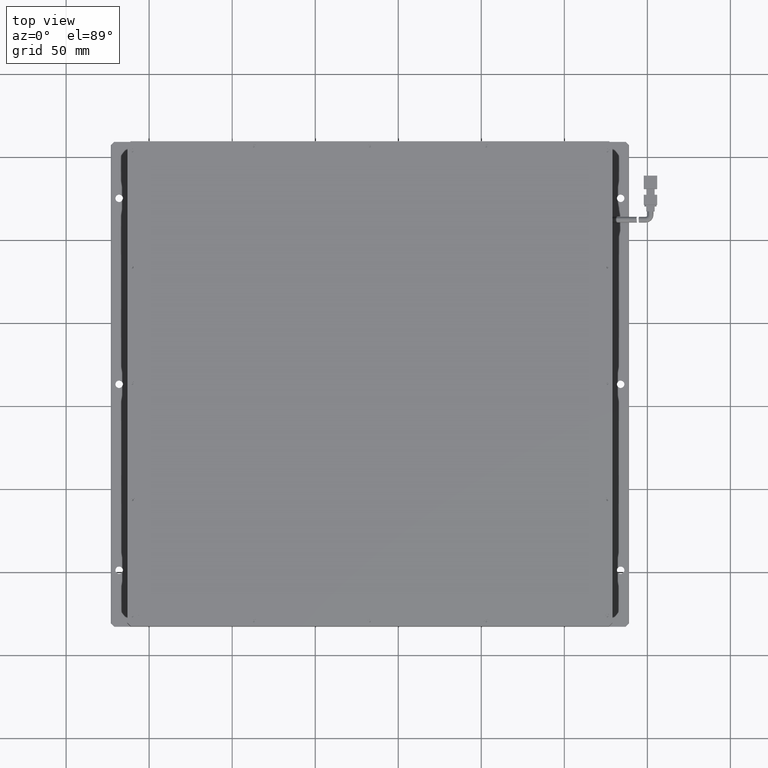
[diagram: clean part render]
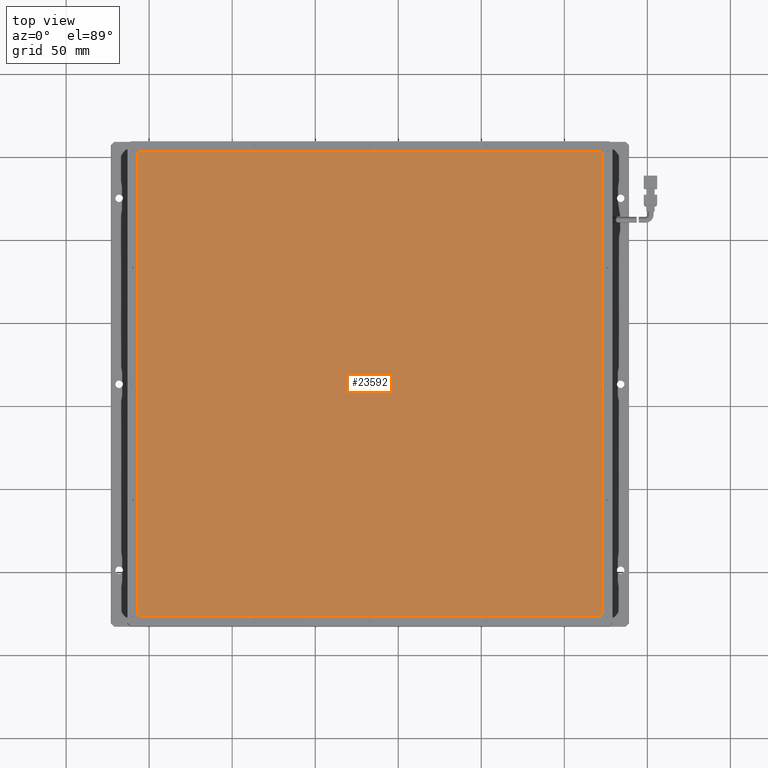
[diagram: same view with one face highlighted and labeled with its STEP entity id]
A machine part, top view. The second image highlights one B-rep face of the part: STEP entity #23592.
In plain terms, the highlighted planar face has unit normal (0, 0, 1).
Its self-contained STEP definition (entity closure, byte-faithful):
#377 = FACE_OUTER_BOUND ( 'NONE', #15428, .T. ) ;
#986 = VECTOR ( 'NONE', #14468, 1000.000000000000000 ) ;
#1299 = VERTEX_POINT ( 'NONE', #9864 ) ;
#2096 = EDGE_CURVE ( 'NONE', #17596, #12570, #12340, .T. ) ;
#2217 = CARTESIAN_POINT ( 'NONE',  ( 172.9193228736581300, 151.2698045692266100, 10.59999999997180500 ) ) ;
#2744 = EDGE_CURVE ( 'NONE', #26042, #10917, #13366, .T. ) ;
#3100 = VECTOR ( 'NONE', #5318, 1000.000000000000000 ) ;
#3785 = DIRECTION ( 'NONE',  ( 0.0000000000000000000, 0.0000000000000000000, 1.000000000000000000 ) ) ;
#4759 = DIRECTION ( 'NONE',  ( 0.0000000000000000000, 0.0000000000000000000, 1.000000000000000000 ) ) ;
#4936 = PLANE ( 'NONE',  #17155 ) ;
#5318 = DIRECTION ( 'NONE',  ( -1.000000000000000000, -0.0000000000000000000, -0.0000000000000000000 ) ) ;
#6675 = VERTEX_POINT ( 'NONE', #23958 ) ;
#7338 = EDGE_CURVE ( 'NONE', #10578, #17596, #11869, .T. ) ;
#7596 = VECTOR ( 'NONE', #15846, 1000.000000000000000 ) ;
#8400 = EDGE_CURVE ( 'NONE', #10917, #1299, #12492, .T. ) ;
#9300 = CARTESIAN_POINT ( 'NONE',  ( 170.9193228736581300, -124.7301954307734100, 10.59999999997180500 ) ) ;
#9442 = ORIENTED_EDGE ( 'NONE', *, *, #7338, .T. ) ;
#9864 = CARTESIAN_POINT ( 'NONE',  ( -105.0806771263419000, -126.7301954307734100, 10.59999999997180500 ) ) ;
#9947 = EDGE_CURVE ( 'NONE', #13915, #26042, #11231, .T. ) ;
#9994 = CARTESIAN_POINT ( 'NONE',  ( 170.9193228736581300, -126.7301954307734100, 10.59999999997180500 ) ) ;
#10578 = VERTEX_POINT ( 'NONE', #12555 ) ;
#10721 = ORIENTED_EDGE ( 'NONE', *, *, #8400, .T. ) ;
#10860 = CIRCLE ( 'NONE', #13678, 2.000000000000001800 ) ;
#10917 = VERTEX_POINT ( 'NONE', #18456 ) ;
#11231 = CIRCLE ( 'NONE', #11742, 2.000000000000001800 ) ;
#11475 = DIRECTION ( 'NONE',  ( 1.000000000000000000, 0.0000000000000000000, -0.0000000000000000000 ) ) ;
#11634 = CARTESIAN_POINT ( 'NONE',  ( -107.0806771263419000, 151.2698045692266100, 10.59999999997180500 ) ) ;
#11742 = AXIS2_PLACEMENT_3D ( 'NONE', #16623, #3785, #18813 ) ;
#11869 = CIRCLE ( 'NONE', #14588, 2.000000000000001800 ) ;
#11927 = CARTESIAN_POINT ( 'NONE',  ( 170.9193228736581300, -124.7301954307734100, 10.59999999997180500 ) ) ;
#12340 = LINE ( 'NONE', #2217, #986 ) ;
#12492 = CIRCLE ( 'NONE', #18566, 2.000000000000001800 ) ;
#12555 = CARTESIAN_POINT ( 'NONE',  ( 170.9193228736581300, -126.7301954307734100, 10.59999999997180500 ) ) ;
#12570 = VERTEX_POINT ( 'NONE', #12950 ) ;
#12794 = DIRECTION ( 'NONE',  ( 0.0000000000000000000, 0.0000000000000000000, 1.000000000000000000 ) ) ;
#12843 = EDGE_CURVE ( 'NONE', #6675, #13915, #14492, .T. ) ;
#12950 = CARTESIAN_POINT ( 'NONE',  ( 172.9193228736581300, 151.2698045692266100, 10.59999999997180500 ) ) ;
#13366 = LINE ( 'NONE', #16427, #7596 ) ;
#13678 = AXIS2_PLACEMENT_3D ( 'NONE', #25599, #12794, #27797 ) ;
#13915 = VERTEX_POINT ( 'NONE', #24893 ) ;
#14138 = DIRECTION ( 'NONE',  ( 1.000000000000000000, 0.0000000000000000000, 0.0000000000000000000 ) ) ;
#14468 = DIRECTION ( 'NONE',  ( -0.0000000000000000000, 1.000000000000000000, -0.0000000000000000000 ) ) ;
#14492 = LINE ( 'NONE', #18177, #3100 ) ;
#14588 = AXIS2_PLACEMENT_3D ( 'NONE', #11927, #26945, #14138 ) ;
#15339 = ORIENTED_EDGE ( 'NONE', *, *, #24622, .T. ) ;
#15428 = EDGE_LOOP ( 'NONE', ( #9442, #23002, #20628, #16089, #21291, #25128, #10721, #15339 ) ) ;
#15846 = DIRECTION ( 'NONE',  ( -0.0000000000000000000, -1.000000000000000000, -0.0000000000000000000 ) ) ;
#16089 = ORIENTED_EDGE ( 'NONE', *, *, #12843, .T. ) ;
#16300 = CARTESIAN_POINT ( 'NONE',  ( 172.9193228736581300, -124.7301954307734100, 10.59999999997180500 ) ) ;
#16427 = CARTESIAN_POINT ( 'NONE',  ( -107.0806771263419000, -124.7301954307734100, 10.59999999997180500 ) ) ;
#16429 = LINE ( 'NONE', #9994, #22107 ) ;
#16623 = CARTESIAN_POINT ( 'NONE',  ( -105.0806771263419000, 151.2698045692266100, 10.59999999997180500 ) ) ;
#17155 = AXIS2_PLACEMENT_3D ( 'NONE', #9300, #24347, #11475 ) ;
#17593 = CARTESIAN_POINT ( 'NONE',  ( -105.0806771263419000, -124.7301954307734100, 10.59999999997180500 ) ) ;
#17596 = VERTEX_POINT ( 'NONE', #16300 ) ;
#18177 = CARTESIAN_POINT ( 'NONE',  ( -105.0806771263419000, 153.2698045692266100, 10.59999999997180500 ) ) ;
#18456 = CARTESIAN_POINT ( 'NONE',  ( -107.0806771263419000, -124.7301954307734100, 10.59999999997180500 ) ) ;
#18566 = AXIS2_PLACEMENT_3D ( 'NONE', #17593, #4759, #19776 ) ;
#18813 = DIRECTION ( 'NONE',  ( 1.000000000000000000, 0.0000000000000000000, 0.0000000000000000000 ) ) ;
#19776 = DIRECTION ( 'NONE',  ( 1.000000000000000000, 0.0000000000000000000, 0.0000000000000000000 ) ) ;
#20628 = ORIENTED_EDGE ( 'NONE', *, *, #21407, .T. ) ;
#21291 = ORIENTED_EDGE ( 'NONE', *, *, #9947, .T. ) ;
#21407 = EDGE_CURVE ( 'NONE', #12570, #6675, #10860, .T. ) ;
#22107 = VECTOR ( 'NONE', #27208, 1000.000000000000000 ) ;
#23002 = ORIENTED_EDGE ( 'NONE', *, *, #2096, .T. ) ;
#23592 = ADVANCED_FACE ( 'NONE', ( #377 ), #4936, .T. ) ;
#23958 = CARTESIAN_POINT ( 'NONE',  ( 170.9193228736581300, 153.2698045692266100, 10.59999999997180500 ) ) ;
#24347 = DIRECTION ( 'NONE',  ( 0.0000000000000000000, 0.0000000000000000000, 1.000000000000000000 ) ) ;
#24622 = EDGE_CURVE ( 'NONE', #1299, #10578, #16429, .T. ) ;
#24893 = CARTESIAN_POINT ( 'NONE',  ( -105.0806771263419000, 153.2698045692266100, 10.59999999997180500 ) ) ;
#25128 = ORIENTED_EDGE ( 'NONE', *, *, #2744, .T. ) ;
#25599 = CARTESIAN_POINT ( 'NONE',  ( 170.9193228736581300, 151.2698045692266100, 10.59999999997180500 ) ) ;
#26042 = VERTEX_POINT ( 'NONE', #11634 ) ;
#26945 = DIRECTION ( 'NONE',  ( 0.0000000000000000000, 0.0000000000000000000, 1.000000000000000000 ) ) ;
#27208 = DIRECTION ( 'NONE',  ( 1.000000000000000000, -0.0000000000000000000, -0.0000000000000000000 ) ) ;
#27797 = DIRECTION ( 'NONE',  ( 1.000000000000000000, 0.0000000000000000000, 0.0000000000000000000 ) ) ;